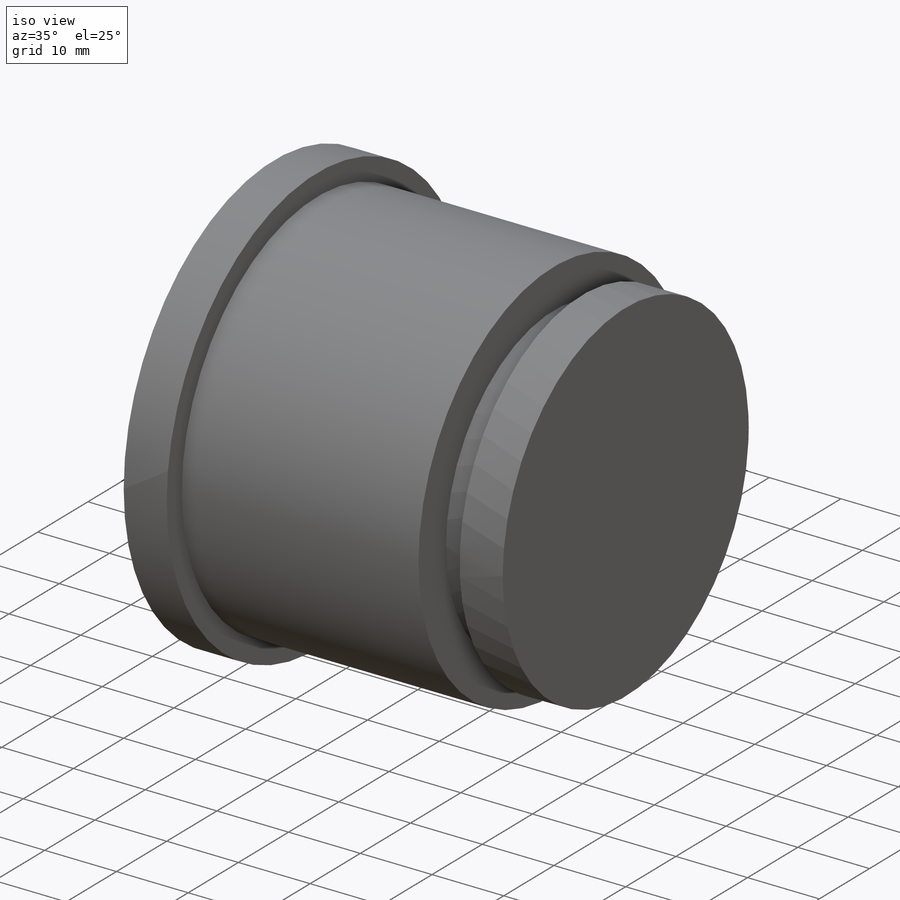
[diagram: iso view]
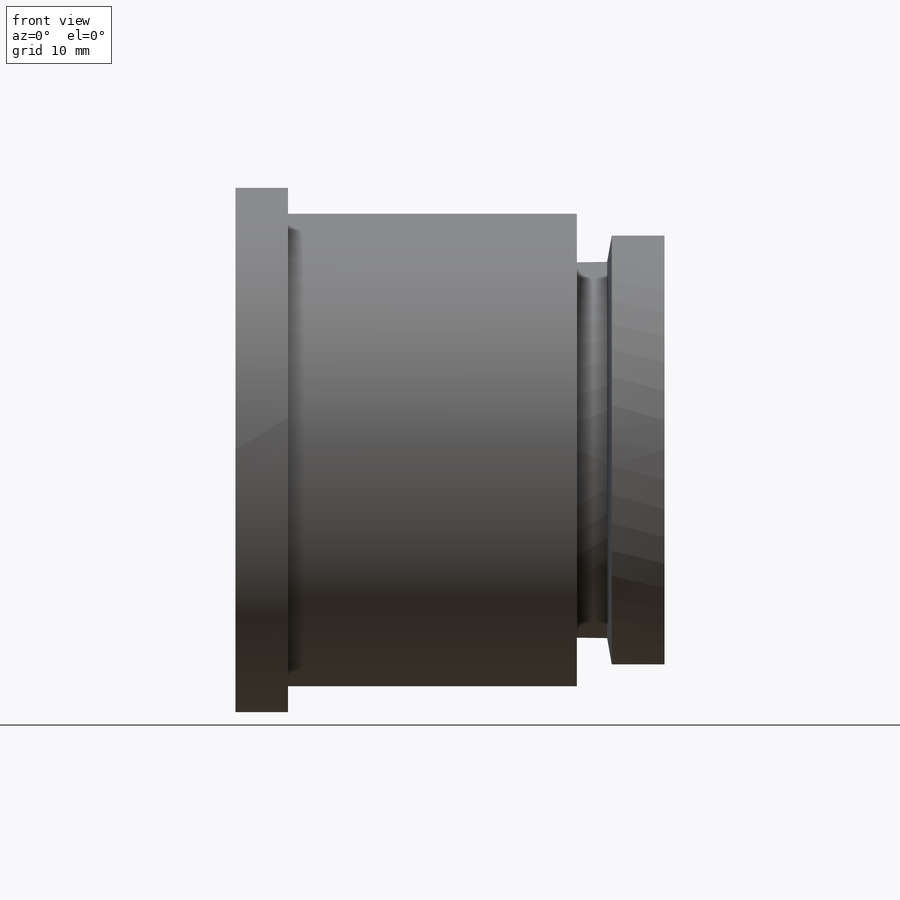
[diagram: front view]
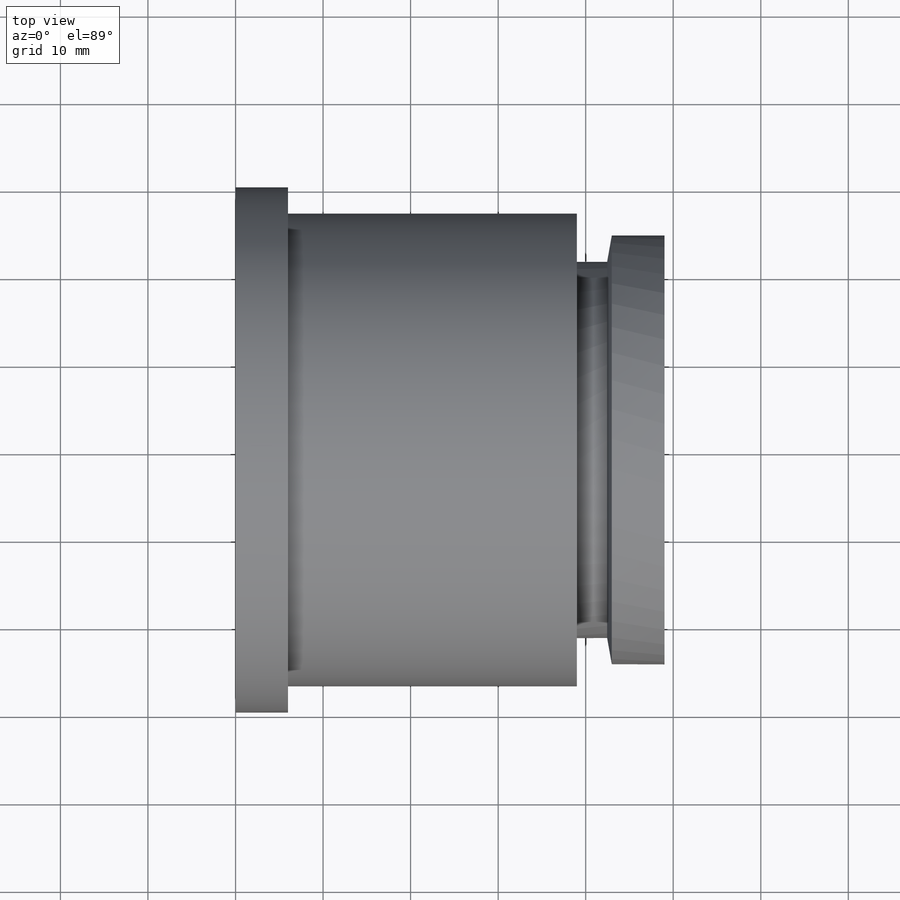
[diagram: top view]
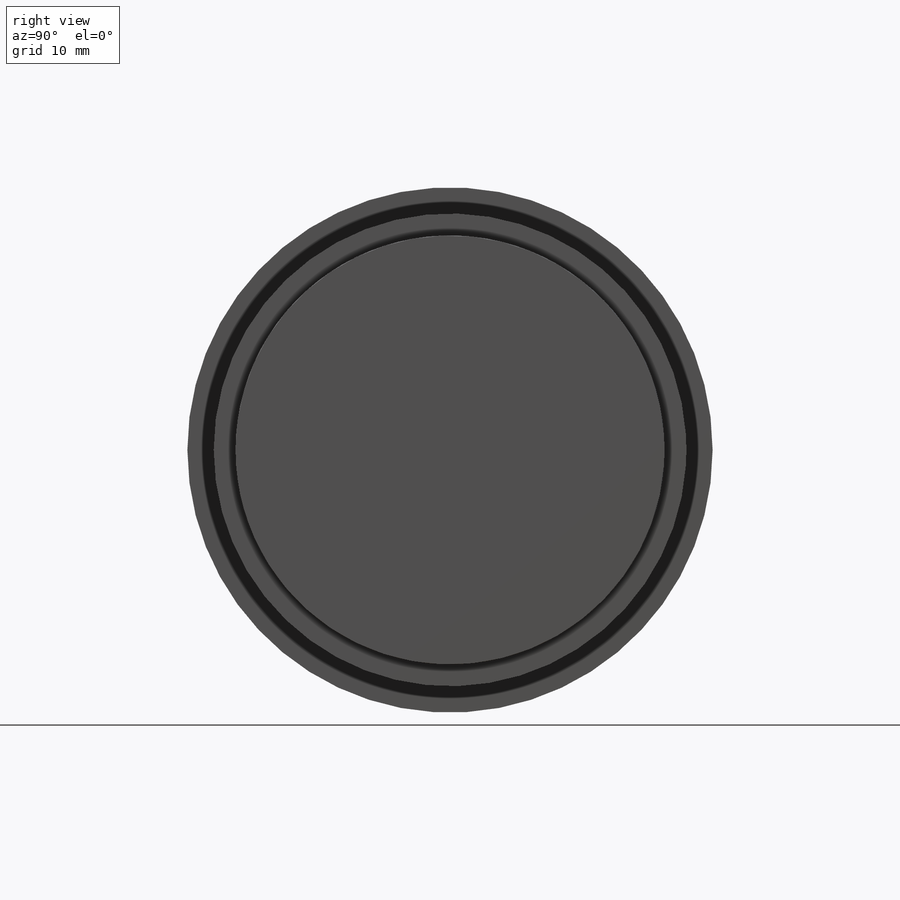
[diagram: right view]
SOLIDWORKS PART (.sldprt)
format: sldprt  version: not decoded by parser v0  size: 182,272 bytes
history: native  units: mm
features: sketch x5, extrude x4, material x1, chamfer x1, helix x1 (+12 scaffold rows collapsed)
feature tree (24):
  scaffold x12  (default folders/planes/origin — collapsed)
  material  "Material <not specified>"
  sketch  "Sketch1"  dims[D1=60.0mm]
  extrude  "bigLip"  Depth=6mm
  sketch  "Sketch2"  dims[D1=54.0mm]
  extrude  "innerTube"  Depth=33mm
  sketch  "Sketch3"  dims[D1=43.0mm]
  extrude  "connection"  Depth=4mm
  sketch  "Sketch4"  dims[D1=49.0mm]
  extrude  "smallLip"  Depth=6mm
  chamfer  "Chamfer1"  Distance=0.55mm Angle=80deg
  sketch  "Sketch5"  dims[D1=45.0mm]
  helix  "Helix/Spiral1"  Pitch=30mm
decode coverage: 11 of 11 modeling features carry decoded parameters
note: suppression state not decoded; provenance and decode notes live in map.json
